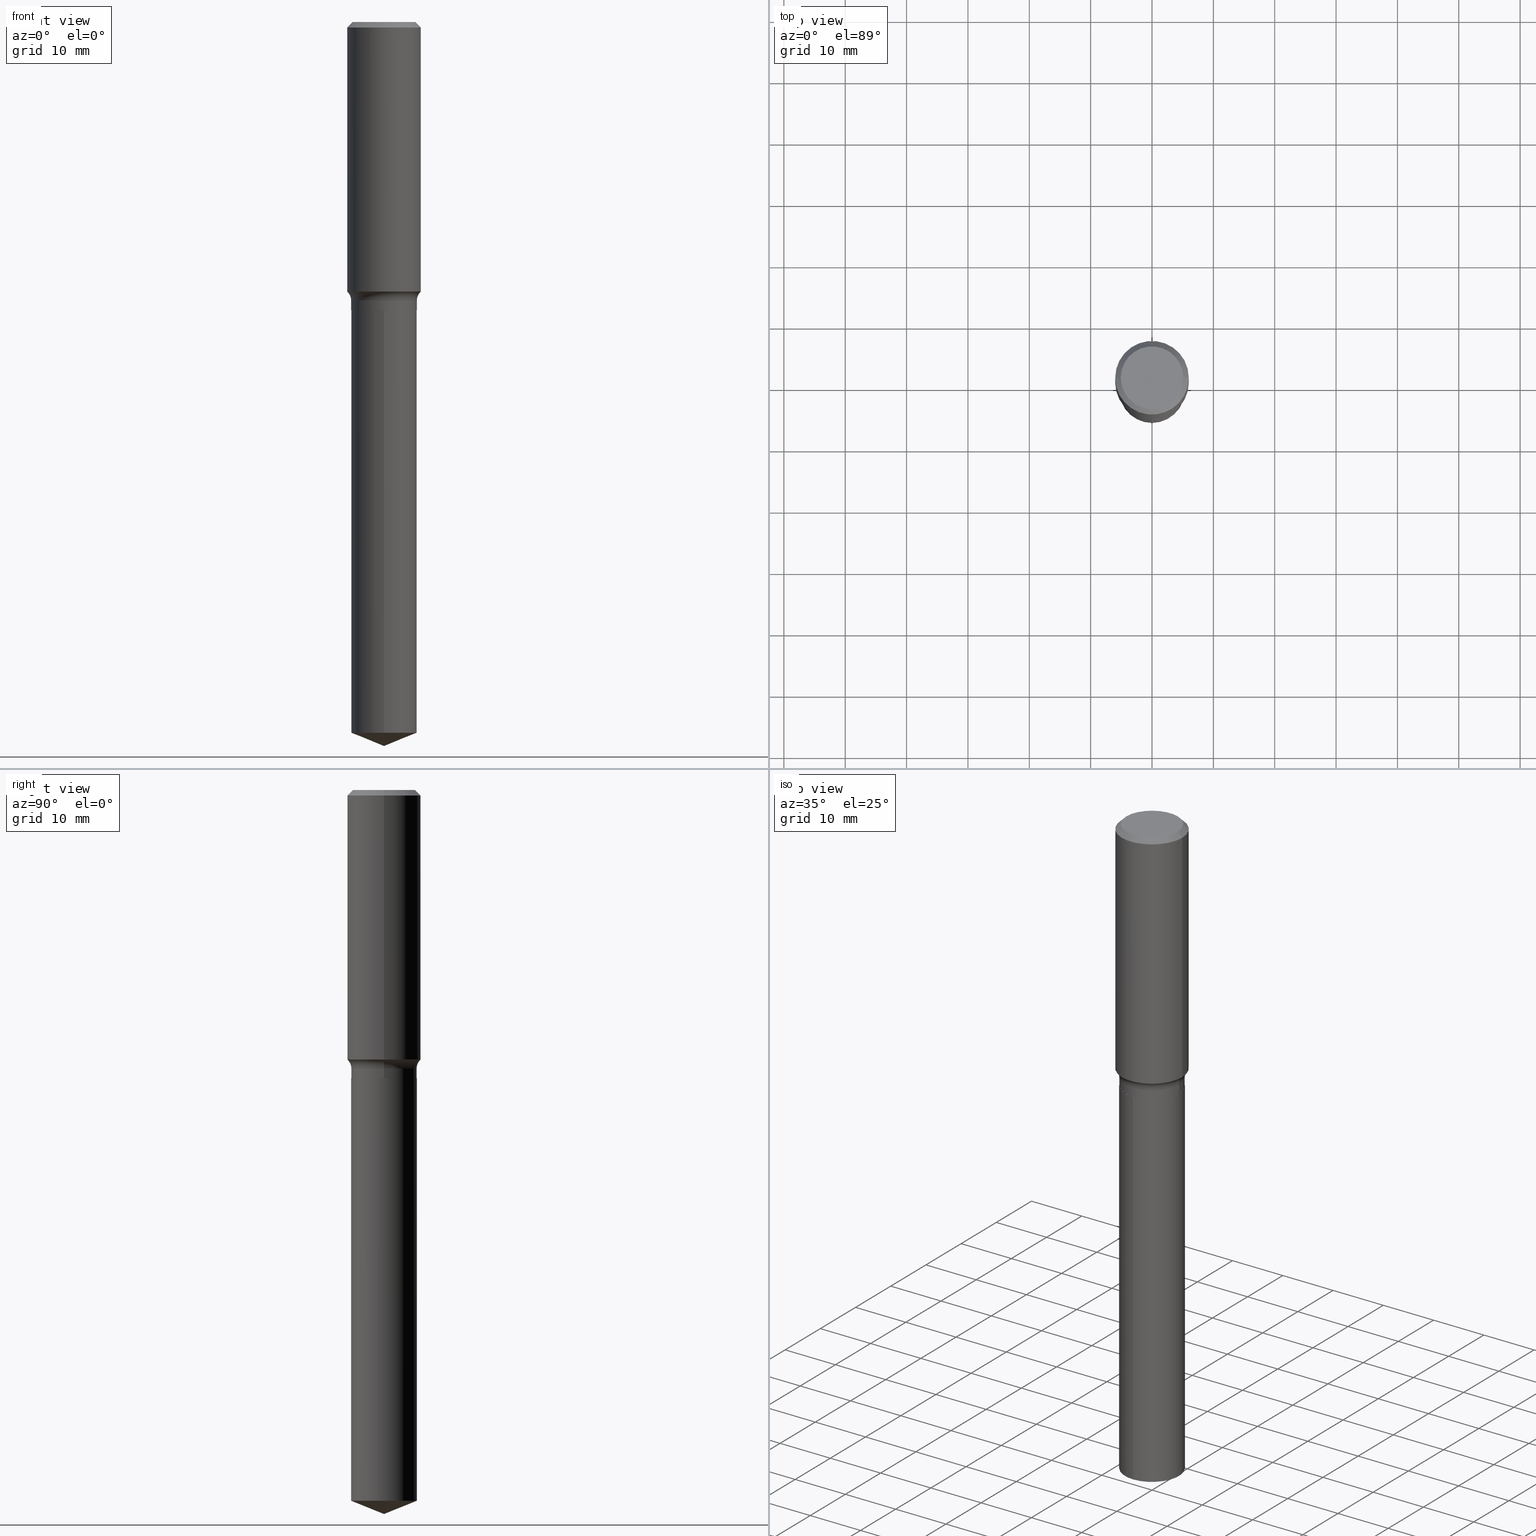
[diagram: canonical four-view strip — front | top / right | iso, engineering-drawing reading convention]
A machine part, canonical four-view strip (front | top / right | iso — engineering-drawing reading convention). The complete STEP part file that produces these views, byte-faithful:
ISO-10303-21;
HEADER;
FILE_DESCRIPTION (( 'STEP AP203' ),
    '1' );
FILE_NAME ('69300.STEP',
    '2024-04-19T17:44:13',
    ( '' ),
    ( '' ),
    'SwSTEP 2.0',
    'SolidWorks 2023',
    '' );
FILE_SCHEMA (( 'CONFIG_CONTROL_DESIGN' ));
ENDSEC;

DATA;
#1 = EDGE_CURVE ( 'NONE', #179, #182, #436, .T. ) ;
#2 = COORDINATED_UNIVERSAL_TIME_OFFSET ( 5, 0, .BEHIND. ) ;
#3 = ORIENTED_EDGE ( 'NONE', *, *, #29, .F. ) ;
#4 = AXIS2_PLACEMENT_3D ( 'NONE', #131, #52, #65 ) ;
#5 = AXIS2_PLACEMENT_3D ( 'NONE', #359, #38, #223 ) ;
#6 = DIRECTION ( 'NONE',  ( -2.445463332132347352E-29, 3.491489177998303329E-15, 1.000000000000000000 ) ) ;
#7 = PLANE ( 'NONE',  #279 ) ;
#8 = EDGE_CURVE ( 'NONE', #458, #177, #232, .T. ) ;
#9 = EDGE_LOOP ( 'NONE', ( #392, #197, #414, #148 ) ) ;
#10 = DIRECTION ( 'NONE',  ( -2.445468806185136597E-29, 3.491481338843145583E-15, 1.000000000000000000 ) ) ;
#11 = PERSON_AND_ORGANIZATION ( #233, #91 ) ;
#12 = CIRCLE ( 'NONE', #437, 0.2101500000000000035 ) ;
#13 = CC_DESIGN_APPROVAL ( #396, ( #204 ) ) ;
#14 = DIRECTION ( 'NONE',  ( -2.445468806185136597E-29, 3.491481338843145583E-15, 1.000000000000000000 ) ) ;
#15 = LINE ( 'NONE', #86, #317 ) ;
#16 = EDGE_CURVE ( 'NONE', #117, #69, #15, .T. ) ;
#17 = EDGE_LOOP ( 'NONE', ( #41, #222, #379, #73 ) ) ;
#18 = PERSON_AND_ORGANIZATION ( #233, #91 ) ;
#19 = PERSON_AND_ORGANIZATION_ROLE ( 'creator' ) ;
#20 = AXIS2_PLACEMENT_3D ( 'NONE', #381, #199, #423 ) ;
#21 = APPROVAL_DATE_TIME ( #357, #396 ) ;
#22 = CC_DESIGN_SECURITY_CLASSIFICATION ( #204, ( #318 ) ) ;
#23 = APPLICATION_CONTEXT ( 'configuration controlled 3d designs of mechanical parts and assemblies' ) ;
#24 = APPROVAL ( #321, 'UNSPECIFIED' ) ;
#25 = ADVANCED_FACE ( 'NONE', ( #282 ), #348, .T. ) ;
#26 = CARTESIAN_POINT ( 'NONE',  ( 1.496758272878762496E-15, 0.2106499999999841000, -4.560891875527826045 ) ) ;
#27 = CARTESIAN_POINT ( 'NONE',  ( 8.664295980313993487E-31, -1.237031838352134079E-16, -0.03543000000000021826 ) ) ;
#28 = DIRECTION ( 'NONE',  ( -6.982962677686266711E-15, -1.000000000000000000, 3.498761904101785748E-15 ) ) ;
#29 = EDGE_CURVE ( 'NONE', #452, #69, #465, .T. ) ;
#30 = CLOSED_SHELL ( 'NONE', ( #435, #95, #303, #129, #413, #192, #285, #25, #46, #207, #350, #338 ) ) ;
#31 = AXIS2_PLACEMENT_3D ( 'NONE', #483, #110, #260 ) ;
#32 = DIRECTION ( 'NONE',  ( -2.445468806185136597E-29, 3.491481338843145583E-15, 1.000000000000000000 ) ) ;
#33 = ORIENTED_EDGE ( 'NONE', *, *, #83, .T. ) ;
#34 = DIMENSIONAL_EXPONENTS ( 1.000000000000000000, 0.000000000000000000, 0.000000000000000000, 0.000000000000000000, 0.000000000000000000, 0.000000000000000000, 0.000000000000000000 ) ;
#35 = DESIGN_CONTEXT ( 'detailed design', #337, 'design' ) ;
#36 = DIRECTION ( 'NONE',  ( -2.445468806185136597E-29, 3.491481338843145583E-15, 1.000000000000000000 ) ) ;
#37 = DIRECTION ( 'NONE',  ( 1.000000000000000000, -6.982962677686268288E-15, 0.000000000000000000 ) ) ;
#38 = DIRECTION ( 'NONE',  ( -2.445468806185136597E-29, 3.491481338843145583E-15, 1.000000000000000000 ) ) ;
#39 = VECTOR ( 'NONE', #227, 39.37007874015748143 ) ;
#40 = CC_DESIGN_PERSON_AND_ORGANIZATION_ASSIGNMENT ( #11, #173, ( #318 ) ) ;
#41 = ORIENTED_EDGE ( 'NONE', *, *, #455, .T. ) ;
#42 = CARTESIAN_POINT ( 'NONE',  ( 0.2101500000000000035, -7.929154120512778443E-15, -1.850700000000000012 ) ) ;
#43 = APPROVAL_ROLE ( '' ) ;
#44 = EDGE_LOOP ( 'NONE', ( #369, #113, #429, #418 ) ) ;
#45 = ORIENTED_EDGE ( 'NONE', *, *, #438, .T. ) ;
#46 = ADVANCED_FACE ( 'NONE', ( #288 ), #203, .T. ) ;
#47 = DIRECTION ( 'NONE',  ( -1.000000000000000000, 6.982962677686265922E-15, -4.876176775795935793E-29 ) ) ;
#48 = MECHANICAL_CONTEXT ( 'NONE', #23, 'mechanical' ) ;
#49 = CONICAL_SURFACE ( 'NONE', #293, 97.44436430772958602, 1.186823891356149074 ) ;
#50 = ORIENTED_EDGE ( 'NONE', *, *, #8, .T. ) ;
#51 = DIRECTION ( 'NONE',  ( 1.000000000000000000, -6.982962677686266711E-15, 4.876176775795935793E-29 ) ) ;
#52 = DIRECTION ( 'NONE',  ( -2.445468806185136597E-29, 3.491481338843145583E-15, 1.000000000000000000 ) ) ;
#53 = COORDINATED_UNIVERSAL_TIME_OFFSET ( 5, 0, .BEHIND. ) ;
#54 = VECTOR ( 'NONE', #302, 39.37007874015748143 ) ;
#55 = FACE_OUTER_BOUND ( 'NONE', #191, .T. ) ;
#56 = PRODUCT_DEFINITION_SHAPE ( 'NONE', 'NONE',  #290 ) ;
#57 = DIRECTION ( 'NONE',  ( 0.7071067811866199593, -2.468850131083015945E-15, 0.7071067811864750752 ) ) ;
#58 = ORIENTED_EDGE ( 'NONE', *, *, #120, .F. ) ;
#59 = CARTESIAN_POINT ( 'NONE',  ( 8.664295980313993487E-31, -1.237031838352134079E-16, -0.03543000000000021826 ) ) ;
#60 = EDGE_CURVE ( 'NONE', #177, #124, #430, .T. ) ;
#61 = PERSON_AND_ORGANIZATION ( #233, #91 ) ;
#62 = VECTOR ( 'NONE', #394, 39.37007874015748143 ) ;
#63 = AXIS2_PLACEMENT_3D ( 'NONE', #147, #373, #156 ) ;
#64 = LINE ( 'NONE', #209, #389 ) ;
#65 = DIRECTION ( 'NONE',  ( 1.000000000000000000, -6.982962677686266711E-15, 0.000000000000000000 ) ) ;
#66 = CARTESIAN_POINT ( 'NONE',  ( 4.525829119606832626E-29, -6.461684513797009689E-15, -1.850700000000000012 ) ) ;
#67 = LINE ( 'NONE', #298, #114 ) ;
#68 = CARTESIAN_POINT ( 'NONE',  ( -0.2101500000000000035, -4.965829727423048317E-15, -1.850700000000000012 ) ) ;
#69 = VERTEX_POINT ( 'NONE', #250 ) ;
#70 = ORIENTED_EDGE ( 'NONE', *, *, #360, .T. ) ;
#71 = CLOSED_SHELL ( 'NONE', ( #205, #426, #462, #325, #201 ) ) ;
#72 = CARTESIAN_POINT ( 'NONE',  ( -8.491645117030201611E-28, 1.212387596451452399E-13, 34.72407874015748064 ) ) ;
#73 = ORIENTED_EDGE ( 'NONE', *, *, #240, .F. ) ;
#74 = EDGE_LOOP ( 'NONE', ( #312, #239 ) ) ;
#75 = CARTESIAN_POINT ( 'NONE',  ( 0.000000000000000000, 0.000000000000000000, 0.000000000000000000 ) ) ;
#76 = CARTESIAN_POINT ( 'NONE',  ( 4.371275491055932900E-29, -6.241022893182124538E-15, -1.787500000000000533 ) ) ;
#77 = ORIENTED_EDGE ( 'NONE', *, *, #29, .T. ) ;
#78 = CARTESIAN_POINT ( 'NONE',  ( -0.2106500000000000039, -4.853722560276206082E-15, -1.850200000000000067 ) ) ;
#79 = ORIENTED_EDGE ( 'NONE', *, *, #166, .T. ) ;
#80 = VECTOR ( 'NONE', #133, 39.37007874015748143 ) ;
#81 = ORIENTED_EDGE ( 'NONE', *, *, #16, .F. ) ;
#82 = CARTESIAN_POINT ( 'NONE',  ( 0.000000000000000000, 0.000000000000000000, 0.000000000000000000 ) ) ;
#83 = EDGE_CURVE ( 'NONE', #228, #416, #269, .T. ) ;
#84 = EDGE_LOOP ( 'NONE', ( #296, #266 ) ) ;
#85 = CYLINDRICAL_SURFACE ( 'NONE', #187, 0.2106500000000000039 ) ;
#86 = CARTESIAN_POINT ( 'NONE',  ( 0.2362000000000001043, -1.649375784469496920E-15, 1.151752954443000508E-29 ) ) ;
#87 = DIRECTION ( 'NONE',  ( 1.000000000000000000, 0.000000000000000000, 0.000000000000000000 ) ) ;
#88 = ORIENTED_EDGE ( 'NONE', *, *, #353, .T. ) ;
#89 = CARTESIAN_POINT ( 'NONE',  ( 4.230093396286823471E-29, -6.039452278983984562E-15, -1.729767881556277809 ) ) ;
#90 = TOROIDAL_SURFACE ( 'NONE', #119, 0.2886500000000000177, 0.07800000000000002764 ) ;
#91 = ORGANIZATION ( 'UNSPECIFIED', 'UNSPECIFIED', '' ) ;
#92 = ORIENTED_EDGE ( 'NONE', *, *, #236, .T. ) ;
#93 = COORDINATED_UNIVERSAL_TIME_OFFSET ( 5, 0, .BEHIND. ) ;
#94 = FACE_OUTER_BOUND ( 'NONE', #439, .T. ) ;
#95 = ADVANCED_FACE ( 'NONE', ( #397 ), #327, .T. ) ;
#96 = APPROVAL_ROLE ( '' ) ;
#97 = CARTESIAN_POINT ( 'NONE',  ( 4.230093396286823471E-29, -6.039452278983984562E-15, -1.729767881556277809 ) ) ;
#98 = VECTOR ( 'NONE', #57, 39.37007874015748143 ) ;
#99 = EDGE_CURVE ( 'NONE', #376, #458, #101, .T. ) ;
#100 = CARTESIAN_POINT ( 'NONE',  ( 1.136162264108688643E-28, -1.622145872098012038E-14, -4.645999999999999908 ) ) ;
#101 = LINE ( 'NONE', #253, #62 ) ;
#102 = APPROVAL_PERSON_ORGANIZATION ( #18, #24, #96 ) ;
#103 = CARTESIAN_POINT ( 'NONE',  ( 0.2361999999999999933, -1.744152810908849053E-15, -0.03543000000000021826 ) ) ;
#104 = DIRECTION ( 'NONE',  ( -1.000000000000000000, 7.105427357601001859E-15, 0.000000000000000000 ) ) ;
#105 = DIRECTION ( 'NONE',  ( -2.445468806185136877E-29, 3.491481338843145188E-15, 1.000000000000000000 ) ) ;
#106 = ORIENTED_EDGE ( 'NONE', *, *, #60, .T. ) ;
#107 = CARTESIAN_POINT ( 'NONE',  ( -0.2362000000000002153, -4.361150337118626591E-15, -1.729767881556277809 ) ) ;
#108 = MANIFOLD_SOLID_BREP ( 'Body-Move/Copy2[2]', #30 ) ;
#109 = ORIENTED_EDGE ( 'NONE', *, *, #99, .F. ) ;
#110 = DIRECTION ( 'NONE',  ( -2.445468806185136597E-29, 3.491481338843145583E-15, 1.000000000000000000 ) ) ;
#111 = MANIFOLD_SOLID_BREP ( 'Body-Move/Copy2[1]', #71 ) ;
#112 = LINE ( 'NONE', #261, #39 ) ;
#113 = ORIENTED_EDGE ( 'NONE', *, *, #346, .T. ) ;
#114 = VECTOR ( 'NONE', #105, 39.37007874015748143 ) ;
#115 = CC_DESIGN_DATE_AND_TIME_ASSIGNMENT ( #167, #352, ( #290 ) ) ;
#116 = DIRECTION ( 'NONE',  ( 1.000000000000000000, -6.982962677686265922E-15, 0.000000000000000000 ) ) ;
#117 = VERTEX_POINT ( 'NONE', #141 ) ;
#118 = DIRECTION ( 'NONE',  ( -2.445463332132347352E-29, 3.491489177998303329E-15, 1.000000000000000000 ) ) ;
#119 = AXIS2_PLACEMENT_3D ( 'NONE', #468, #14, #202 ) ;
#120 = EDGE_CURVE ( 'NONE', #476, #264, #152, .T. ) ;
#121 = EDGE_LOOP ( 'NONE', ( #109, #441, #450, #286 ) ) ;
#122 = DIRECTION ( 'NONE',  ( 1.000000000000000000, -6.982962677686268288E-15, 0.000000000000000000 ) ) ;
#123 = CARTESIAN_POINT ( 'NONE',  ( 4.524606385203739825E-29, -6.459938773127588186E-15, -1.850200000000000067 ) ) ;
#124 = VERTEX_POINT ( 'NONE', #255 ) ;
#125 = DIRECTION ( 'NONE',  ( 1.000000000000000000, -6.982962677686265922E-15, 0.000000000000000000 ) ) ;
#126 = PERSON_AND_ORGANIZATION_ROLE ( 'classification_officer' ) ;
#127 = VECTOR ( 'NONE', #478, 39.37007874015748143 ) ;
#128 = CIRCLE ( 'NONE', #349, 0.2106500000000000039 ) ;
#129 = ADVANCED_FACE ( 'NONE', ( #198 ), #90, .F. ) ;
#130 = CARTESIAN_POINT ( 'NONE',  ( 1.496758272878762890E-15, 0.2106499999999935646, -1.850700000000000900 ) ) ;
#131 = CARTESIAN_POINT ( 'NONE',  ( 8.664295980313993487E-31, -1.237031838352134079E-16, -0.03543000000000021826 ) ) ;
#132 = CARTESIAN_POINT ( 'NONE',  ( 0.000000000000000000, 0.000000000000000000, 0.000000000000000000 ) ) ;
#133 = DIRECTION ( 'NONE',  ( 6.588037525764803124E-15, 0.9271838545667905329, 0.3746065934159041877 ) ) ;
#134 = ORIENTED_EDGE ( 'NONE', *, *, #268, .F. ) ;
#135 = CC_DESIGN_PERSON_AND_ORGANIZATION_ASSIGNMENT ( #283, #19, ( #318 ) ) ;
#136 = AXIS2_PLACEMENT_3D ( 'NONE', #27, #210, #146 ) ;
#137 =( GEOMETRIC_REPRESENTATION_CONTEXT ( 3 ) GLOBAL_UNCERTAINTY_ASSIGNED_CONTEXT ( ( #443 ) ) GLOBAL_UNIT_ASSIGNED_CONTEXT ( ( #412, #310, #339 ) ) REPRESENTATION_CONTEXT ( 'NONE', 'WORKASPACE' ) );
#138 = CALENDAR_DATE ( 2024, 19, 4 ) ;
#139 = CARTESIAN_POINT ( 'NONE',  ( 0.2106500000000000039, -1.470961088054612155E-15, 1.027166637821413946E-29 ) ) ;
#140 = DIRECTION ( 'NONE',  ( -2.445463332132347352E-29, 3.491489177998303329E-15, 1.000000000000000000 ) ) ;
#141 = CARTESIAN_POINT ( 'NONE',  ( 0.2362000000000002153, -7.688828063453482665E-15, -1.729767881556277809 ) ) ;
#142 = AXIS2_PLACEMENT_3D ( 'NONE', #306, #6, #460 ) ;
#143 = AXIS2_PLACEMENT_3D ( 'NONE', #66, #140, #291 ) ;
#144 = DIRECTION ( 'NONE',  ( 1.000000000000000000, -6.982962677686266711E-15, 4.876140833081945105E-29 ) ) ;
#145 = DIRECTION ( 'NONE',  ( -2.445463332132347352E-29, 3.491489177998303329E-15, 1.000000000000000000 ) ) ;
#146 = DIRECTION ( 'NONE',  ( -1.000000000000000000, 6.982962677686266711E-15, 0.000000000000000000 ) ) ;
#147 = CARTESIAN_POINT ( 'NONE',  ( -8.491645117030201611E-28, 1.212387596451452399E-13, 34.72407874015748064 ) ) ;
#148 = ORIENTED_EDGE ( 'NONE', *, *, #370, .F. ) ;
#149 = CARTESIAN_POINT ( 'NONE',  ( 4.525829119606832626E-29, -6.461684513797009689E-15, -1.850700000000000012 ) ) ;
#150 = EDGE_CURVE ( 'NONE', #264, #124, #387, .T. ) ;
#151 = VERTEX_POINT ( 'NONE', #276 ) ;
#152 = CIRCLE ( 'NONE', #196, 0.07800000000000002764 ) ;
#153 = DIRECTION ( 'NONE',  ( 1.000000000000000000, -6.982962677686266711E-15, 4.876140833081945105E-29 ) ) ;
#154 = CARTESIAN_POINT ( 'NONE',  ( -0.2361999999999999933, 1.525672600634282748E-15, -0.03543000000000021826 ) ) ;
#155 = FACE_OUTER_BOUND ( 'NONE', #162, .T. ) ;
#156 = DIRECTION ( 'NONE',  ( -6.982962677686266711E-15, -1.000000000000000000, 3.498761904101785748E-15 ) ) ;
#157 = ORIENTED_EDGE ( 'NONE', *, *, #214, .F. ) ;
#158 = FACE_OUTER_BOUND ( 'NONE', #121, .T. ) ;
#159 = CALENDAR_DATE ( 2024, 19, 4 ) ;
#160 = ORIENTED_EDGE ( 'NONE', *, *, #236, .F. ) ;
#161 = CIRCLE ( 'NONE', #5, 0.2101500000000000035 ) ;
#162 = EDGE_LOOP ( 'NONE', ( #157, #407, #88, #134 ) ) ;
#163 = DIRECTION ( 'NONE',  ( 0.000000000000000000, 0.000000000000000000, 1.000000000000000000 ) ) ;
#164 = EDGE_LOOP ( 'NONE', ( #224, #33 ) ) ;
#165 = PLANE ( 'NONE',  #356 ) ;
#166 = EDGE_CURVE ( 'NONE', #476, #117, #490, .T. ) ;
#167 = DATE_AND_TIME ( #208, #466 ) ;
#168 = AXIS2_PLACEMENT_3D ( 'NONE', #256, #371, #37 ) ;
#169 = CYLINDRICAL_SURFACE ( 'NONE', #417, 0.2106500000000000039 ) ;
#170 = PERSON_AND_ORGANIZATION_ROLE ( 'creator' ) ;
#171 = EDGE_CURVE ( 'NONE', #476, #452, #247, .T. ) ;
#172 = COORDINATED_UNIVERSAL_TIME_OFFSET ( 5, 0, .BEHIND. ) ;
#173 = PERSON_AND_ORGANIZATION_ROLE ( 'design_supplier' ) ;
#174 = LINE ( 'NONE', #100, #333 ) ;
#175 = CARTESIAN_POINT ( 'NONE',  ( 0.2007700000000000040, -1.560767496960719672E-15, 4.096137381458473721E-18 ) ) ;
#176 = EDGE_CURVE ( 'NONE', #117, #476, #218, .T. ) ;
#177 = VERTEX_POINT ( 'NONE', #385 ) ;
#178 = CARTESIAN_POINT ( 'NONE',  ( 1.136164308041671340E-28, -1.622142970513121582E-14, -4.645999999999999908 ) ) ;
#179 = VERTEX_POINT ( 'NONE', #461 ) ;
#180 = TOROIDAL_SURFACE ( 'NONE', #479, 0.2886500000000000177, 0.07800000000000002764 ) ;
#181 = CARTESIAN_POINT ( 'NONE',  ( -0.2007700000000000040, 1.463821008716677338E-15, 4.096137381438094301E-18 ) ) ;
#182 = VERTEX_POINT ( 'NONE', #130 ) ;
#183 = ORIENTED_EDGE ( 'NONE', *, *, #294, .F. ) ;
#184 = CC_DESIGN_PERSON_AND_ORGANIZATION_ASSIGNMENT ( #281, #170, ( #290 ) ) ;
#185 = CARTESIAN_POINT ( 'NONE',  ( 1.115350397425312499E-28, -1.592429011750133735E-14, -4.560891875527825157 ) ) ;
#186 = CARTESIAN_POINT ( 'NONE',  ( 4.525829119606832626E-29, -6.461684513797009689E-15, -1.850700000000000012 ) ) ;
#187 = AXIS2_PLACEMENT_3D ( 'NONE', #206, #345, #245 ) ;
#188 = AXIS2_PLACEMENT_3D ( 'NONE', #185, #145, #267 ) ;
#189 = DIRECTION ( 'NONE',  ( 1.000000000000000000, -6.982962677686265922E-15, 0.000000000000000000 ) ) ;
#190 = FACE_OUTER_BOUND ( 'NONE', #237, .T. ) ;
#191 = EDGE_LOOP ( 'NONE', ( #45, #368, #445, #471 ) ) ;
#192 = ADVANCED_FACE ( 'NONE', ( #94 ), #169, .T. ) ;
#193 = DIRECTION ( 'NONE',  ( 1.000000000000000000, -6.982962677686266711E-15, 4.876176775795935793E-29 ) ) ;
#194 = ORIENTED_EDGE ( 'NONE', *, *, #438, .F. ) ;
#195 = DIRECTION ( 'NONE',  ( -2.445468806185136877E-29, 3.491481338843145188E-15, 1.000000000000000000 ) ) ;
#196 = AXIS2_PLACEMENT_3D ( 'NONE', #292, #434, #104 ) ;
#197 = ORIENTED_EDGE ( 'NONE', *, *, #274, .T. ) ;
#198 = FACE_OUTER_BOUND ( 'NONE', #342, .T. ) ;
#199 = DIRECTION ( 'NONE',  ( -2.445468806185136597E-29, 3.491481338843145583E-15, 1.000000000000000000 ) ) ;
#200 = CARTESIAN_POINT ( 'NONE',  ( 0.000000000000000000, 0.000000000000000000, 0.000000000000000000 ) ) ;
#201 = ADVANCED_FACE ( 'NONE', ( #284 ), #165, .F. ) ;
#202 = DIRECTION ( 'NONE',  ( 1.000000000000000000, -6.982962677686267499E-15, 4.883557194083114022E-29 ) ) ;
#203 = CONICAL_SURFACE ( 'NONE', #136, 0.2361999999999999933, 0.7853981633974452814 ) ;
#204 = SECURITY_CLASSIFICATION ( '', '', #473 ) ;
#205 = ADVANCED_FACE ( 'NONE', ( #55 ), #85, .T. ) ;
#206 = CARTESIAN_POINT ( 'NONE',  ( 4.525829119606832626E-29, -6.461684513797009689E-15, -1.850700000000000012 ) ) ;
#207 = ADVANCED_FACE ( 'NONE', ( #351 ), #7, .F. ) ;
#208 = CALENDAR_DATE ( 2024, 19, 4 ) ;
#209 = CARTESIAN_POINT ( 'NONE',  ( 1.496758272878696232E-15, 0.2106499999999935646, -1.850700000000000900 ) ) ;
#210 = DIRECTION ( 'NONE',  ( 2.445468806185136597E-29, -3.491481338843145583E-15, -1.000000000000000000 ) ) ;
#211 = DATE_AND_TIME ( #159, #419 ) ;
#212 = CC_DESIGN_APPROVAL ( #403, ( #290 ) ) ;
#213 = LINE ( 'NONE', #178, #80 ) ;
#214 = EDGE_CURVE ( 'NONE', #231, #182, #64, .T. ) ;
#215 = ORIENTED_EDGE ( 'NONE', *, *, #120, .T. ) ;
#216 = DIRECTION ( 'NONE',  ( -6.982962677686265922E-15, -1.000000000000000000, 2.593731776562319814E-15 ) ) ;
#217 = FACE_OUTER_BOUND ( 'NONE', #44, .T. ) ;
#218 = CIRCLE ( 'NONE', #262, 0.2362000000000002153 ) ;
#219 = ORIENTED_EDGE ( 'NONE', *, *, #16, .T. ) ;
#220 = EDGE_CURVE ( 'NONE', #151, #340, #174, .T. ) ;
#221 = CIRCLE ( 'NONE', #395, 0.2106500000000000039 ) ;
#222 = ORIENTED_EDGE ( 'NONE', *, *, #99, .T. ) ;
#223 = DIRECTION ( 'NONE',  ( 1.000000000000000000, -6.982962677686268288E-15, 0.000000000000000000 ) ) ;
#224 = ORIENTED_EDGE ( 'NONE', *, *, #322, .T. ) ;
#225 = ORIENTED_EDGE ( 'NONE', *, *, #166, .F. ) ;
#226 = DIRECTION ( 'NONE',  ( -2.445468806185136597E-29, 3.491481338843145583E-15, 1.000000000000000000 ) ) ;
#227 = DIRECTION ( 'NONE',  ( -2.445463332132347072E-29, 3.491489177998303329E-15, 1.000000000000000000 ) ) ;
#228 = VERTEX_POINT ( 'NONE', #175 ) ;
#229 = CARTESIAN_POINT ( 'NONE',  ( 4.371275491055932900E-29, -6.241022893182124538E-15, -1.787500000000000533 ) ) ;
#230 = DIRECTION ( 'NONE',  ( 1.000000000000000000, -6.982962677686268288E-15, 0.000000000000000000 ) ) ;
#231 = VERTEX_POINT ( 'NONE', #26 ) ;
#232 = CIRCLE ( 'NONE', #307, 0.2106500000000000039 ) ;
#233 = PERSON ( 'UNSPECIFIED', 'UNSPECIFIED', 'UNSPECIFIED', ('UNSPECIFIED'), ('UNSPECIFIED'), ('UNSPECIFIED') ) ;
#234 = CONICAL_SURFACE ( 'NONE', #63, 97.44436430772958602, 1.186823891356149074 ) ;
#235 = DIRECTION ( 'NONE',  ( -6.982962677686265922E-15, -1.000000000000000000, 3.890597664843479129E-15 ) ) ;
#236 = EDGE_CURVE ( 'NONE', #151, #231, #213, .T. ) ;
#237 = EDGE_LOOP ( 'NONE', ( #160, #485, #446 ) ) ;
#238 = PERSON_AND_ORGANIZATION ( #233, #91 ) ;
#239 = ORIENTED_EDGE ( 'NONE', *, *, #268, .T. ) ;
#240 = EDGE_CURVE ( 'NONE', #330, #177, #361, .T. ) ;
#241 = DIRECTION ( 'NONE',  ( -2.445468806185136877E-29, 3.491481338843145188E-15, 1.000000000000000000 ) ) ;
#242 = VECTOR ( 'NONE', #195, 39.37007874015748143 ) ;
#243 = AXIS2_PLACEMENT_3D ( 'NONE', #200, #163, #87 ) ;
#244 = ORIENTED_EDGE ( 'NONE', *, *, #176, .T. ) ;
#245 = DIRECTION ( 'NONE',  ( -6.982962677686265922E-15, -1.000000000000000000, 3.890597664843479129E-15 ) ) ;
#246 = APPROVAL_STATUS ( 'not_yet_approved' ) ;
#247 = LINE ( 'NONE', #382, #242 ) ;
#248 = CC_DESIGN_PERSON_AND_ORGANIZATION_ASSIGNMENT ( #238, #378, ( #390 ) ) ;
#249 = APPROVAL_PERSON_ORGANIZATION ( #61, #396, #464 ) ;
#250 = CARTESIAN_POINT ( 'NONE',  ( 0.2361999999999999933, -1.773078968304709514E-15, -0.03543000000000021826 ) ) ;
#251 = CALENDAR_DATE ( 2024, 19, 4 ) ;
#252 = CARTESIAN_POINT ( 'NONE',  ( -1.001697619218023151E-46, 1.430158722866391908E-32, 4.096137381448114529E-18 ) ) ;
#253 = CARTESIAN_POINT ( 'NONE',  ( -0.2101500000000000035, -4.968478954597159518E-15, -1.850700000000000012 ) ) ;
#254 = CIRCLE ( 'NONE', #280, 0.2007700000000000040 ) ;
#255 = CARTESIAN_POINT ( 'NONE',  ( 0.2106500000000000039, -7.711983981236735510E-15, -1.787500000000000533 ) ) ;
#256 = CARTESIAN_POINT ( 'NONE',  ( 0.2886500000000000177, -8.256655070096265134E-15, -1.787500000000000533 ) ) ;
#257 = ORIENTED_EDGE ( 'NONE', *, *, #360, .F. ) ;
#258 = CC_DESIGN_DATE_AND_TIME_ASSIGNMENT ( #469, #424, ( #204 ) ) ;
#259 = ORIENTED_EDGE ( 'NONE', *, *, #171, .T. ) ;
#260 = DIRECTION ( 'NONE',  ( 1.000000000000000000, -6.982962677686266711E-15, 0.000000000000000000 ) ) ;
#261 = CARTESIAN_POINT ( 'NONE',  ( -1.470961088054566598E-15, -0.2106500000000064710, -1.850699999999999124 ) ) ;
#262 = AXIS2_PLACEMENT_3D ( 'NONE', #97, #470, #316 ) ;
#263 = CIRCLE ( 'NONE', #143, 0.2106500000000000039 ) ;
#264 = VERTEX_POINT ( 'NONE', #474 ) ;
#265 = CARTESIAN_POINT ( 'NONE',  ( 4.525829119606832626E-29, -6.461684513797009689E-15, -1.850700000000000012 ) ) ;
#266 = ORIENTED_EDGE ( 'NONE', *, *, #420, .F. ) ;
#267 = DIRECTION ( 'NONE',  ( -6.982962677686265922E-15, -1.000000000000000000, 2.593731776562319814E-15 ) ) ;
#268 = EDGE_CURVE ( 'NONE', #182, #179, #263, .T. ) ;
#269 = CIRCLE ( 'NONE', #363, 0.2007700000000000040 ) ;
#270 = CIRCLE ( 'NONE', #168, 0.07800000000000002764 ) ;
#271 = LOCAL_TIME ( 13, 44, 13.00000000000000000, #289 ) ;
#272 = ORIENTED_EDGE ( 'NONE', *, *, #322, .F. ) ;
#273 = CARTESIAN_POINT ( 'NONE',  ( -5.008488096090115757E-47, 7.150793614331959538E-33, 2.048068690724057264E-18 ) ) ;
#274 = EDGE_CURVE ( 'NONE', #228, #69, #433, .T. ) ;
#275 = DIRECTION ( 'NONE',  ( -2.445468806185136597E-29, 3.491481338843145583E-15, 1.000000000000000000 ) ) ;
#276 = CARTESIAN_POINT ( 'NONE',  ( 1.136162264108688643E-28, -1.622145872098012038E-14, -4.645999999999999908 ) ) ;
#277 =( LENGTH_UNIT ( ) NAMED_UNIT ( * ) SI_UNIT ( $, .METRE. ) );
#278 = ORIENTED_EDGE ( 'NONE', *, *, #171, .F. ) ;
#279 = AXIS2_PLACEMENT_3D ( 'NONE', #273, #415, #47 ) ;
#280 = AXIS2_PLACEMENT_3D ( 'NONE', #334, #411, #153 ) ;
#281 = PERSON_AND_ORGANIZATION ( #233, #91 ) ;
#282 = FACE_OUTER_BOUND ( 'NONE', #375, .T. ) ;
#283 = PERSON_AND_ORGANIZATION ( #233, #91 ) ;
#284 = FACE_OUTER_BOUND ( 'NONE', #74, .T. ) ;
#285 = ADVANCED_FACE ( 'NONE', ( #477 ), #180, .F. ) ;
#286 = ORIENTED_EDGE ( 'NONE', *, *, #8, .F. ) ;
#287 = AXIS2_PLACEMENT_3D ( 'NONE', #59, #324, #432 ) ;
#288 = FACE_OUTER_BOUND ( 'NONE', #482, .T. ) ;
#289 = COORDINATED_UNIVERSAL_TIME_OFFSET ( 5, 0, .BEHIND. ) ;
#290 = PRODUCT_DEFINITION ( 'UNKNOWN', '', #318, #35 ) ;
#291 = DIRECTION ( 'NONE',  ( -6.982962677686265922E-15, -1.000000000000000000, 3.890597664843479129E-15 ) ) ;
#292 = CARTESIAN_POINT ( 'NONE',  ( -0.2886500000000000177, -4.190041286410594832E-15, -1.787500000000000533 ) ) ;
#293 = AXIS2_PLACEMENT_3D ( 'NONE', #72, #329, #28 ) ;
#294 = EDGE_CURVE ( 'NONE', #69, #452, #364, .T. ) ;
#295 = CARTESIAN_POINT ( 'NONE',  ( 4.524606385203739825E-29, -6.459938773127588186E-15, -1.850200000000000067 ) ) ;
#296 = ORIENTED_EDGE ( 'NONE', *, *, #455, .F. ) ;
#297 = DIRECTION ( 'NONE',  ( -2.445468806185136597E-29, 3.491481338843145583E-15, 1.000000000000000000 ) ) ;
#298 = CARTESIAN_POINT ( 'NONE',  ( -0.2106500000000000039, 1.496758272878651069E-15, -1.036173676762196056E-29 ) ) ;
#299 = DIRECTION ( 'NONE',  ( -2.445468806185136597E-29, 3.491481338843145583E-15, 1.000000000000000000 ) ) ;
#300 = APPROVAL_PERSON_ORGANIZATION ( #341, #403, #43 ) ;
#301 = ORIENTED_EDGE ( 'NONE', *, *, #311, .T. ) ;
#302 = DIRECTION ( 'NONE',  ( -0.7071067811865453523, 2.468850131082234184E-15, -0.7071067811865496822 ) ) ;
#303 = ADVANCED_FACE ( 'NONE', ( #399 ), #366, .T. ) ;
#304 = CARTESIAN_POINT ( 'NONE',  ( 4.525829119606832626E-29, -6.461684513797009689E-15, -1.850700000000000012 ) ) ;
#305 = PLANE ( 'NONE',  #328 ) ;
#306 = CARTESIAN_POINT ( 'NONE',  ( 4.525829119606832626E-29, -6.461684513797009689E-15, -1.850700000000000012 ) ) ;
#307 = AXIS2_PLACEMENT_3D ( 'NONE', #123, #275, #125 ) ;
#308 = AXIS2_PLACEMENT_3D ( 'NONE', #186, #299, #451 ) ;
#309 = DIRECTION ( 'NONE',  ( -2.445468806185136597E-29, 3.491481338843145583E-15, 1.000000000000000000 ) ) ;
#310 =( NAMED_UNIT ( * ) PLANE_ANGLE_UNIT ( ) SI_UNIT ( $, .RADIAN. ) );
#311 = EDGE_CURVE ( 'NONE', #124, #264, #410, .T. ) ;
#312 = ORIENTED_EDGE ( 'NONE', *, *, #1, .T. ) ;
#313 = DIRECTION ( 'NONE',  ( 1.000000000000000000, -6.982962677686266711E-15, 0.000000000000000000 ) ) ;
#314 = APPLICATION_PROTOCOL_DEFINITION ( 'international standard', 'config_control_design', 1994, #337 ) ;
#315 = ORIENTED_EDGE ( 'NONE', *, *, #274, .F. ) ;
#316 = DIRECTION ( 'NONE',  ( 1.000000000000000000, -6.982962677686266711E-15, 0.000000000000000000 ) ) ;
#317 = VECTOR ( 'NONE', #241, 39.37007874015748143 ) ;
#318 = PRODUCT_DEFINITION_FORMATION_WITH_SPECIFIED_SOURCE ( 'ANY', '', #390, .NOT_KNOWN. ) ;
#319 = PRODUCT_RELATED_PRODUCT_CATEGORY ( 'detail', '', ( #390 ) ) ;
#320 = APPROVAL_DATE_TIME ( #211, #403 ) ;
#321 = APPROVAL_STATUS ( 'not_yet_approved' ) ;
#322 = EDGE_CURVE ( 'NONE', #416, #228, #254, .T. ) ;
#323 = AXIS2_PLACEMENT_3D ( 'NONE', #229, #36, #189 ) ;
#324 = DIRECTION ( 'NONE',  ( 2.445468806185136597E-29, -3.491481338843145583E-15, -1.000000000000000000 ) ) ;
#325 = ADVANCED_FACE ( 'NONE', ( #155 ), #408, .T. ) ;
#326 = DIRECTION ( 'NONE',  ( 0.7071067811865453523, -7.319954787623248157E-15, -0.7071067811865496822 ) ) ;
#327 = CONICAL_SURFACE ( 'NONE', #287, 0.2361999999999999933, 0.7853981633974452814 ) ;
#328 = AXIS2_PLACEMENT_3D ( 'NONE', #265, #405, #362 ) ;
#329 = DIRECTION ( 'NONE',  ( -2.445463332132347352E-29, 3.491489177998303329E-15, 1.000000000000000000 ) ) ;
#330 = VERTEX_POINT ( 'NONE', #42 ) ;
#331 = LINE ( 'NONE', #154, #54 ) ;
#332 = CC_DESIGN_PERSON_AND_ORGANIZATION_ASSIGNMENT ( #384, #126, ( #204 ) ) ;
#333 = VECTOR ( 'NONE', #391, 39.37007874015748854 ) ;
#334 = CARTESIAN_POINT ( 'NONE',  ( -1.001697619218023151E-46, 1.430158722866391908E-32, 4.096137381448114529E-18 ) ) ;
#335 = CARTESIAN_POINT ( 'NONE',  ( -0.2361999999999999933, -1.403275789544241100E-15, -0.03543000000000021826 ) ) ;
#336 = ORIENTED_EDGE ( 'NONE', *, *, #176, .F. ) ;
#337 = APPLICATION_CONTEXT ( 'configuration controlled 3d designs of mechanical parts and assemblies' ) ;
#338 = ADVANCED_FACE ( 'NONE', ( #158 ), #449, .T. ) ;
#339 =( NAMED_UNIT ( * ) SI_UNIT ( $, .STERADIAN. ) SOLID_ANGLE_UNIT ( ) );
#340 = VERTEX_POINT ( 'NONE', #400 ) ;
#341 = PERSON_AND_ORGANIZATION ( #233, #91 ) ;
#342 = EDGE_LOOP ( 'NONE', ( #225, #215, #486, #257 ) ) ;
#343 = DIRECTION ( 'NONE',  ( -2.445468806185136597E-29, 3.491481338843145583E-15, 1.000000000000000000 ) ) ;
#344 = LENGTH_MEASURE_WITH_UNIT ( LENGTH_MEASURE( 0.02539999999999999897 ), #277 );
#345 = DIRECTION ( 'NONE',  ( -2.445463332132347352E-29, 3.491489177998303329E-15, 1.000000000000000000 ) ) ;
#346 = EDGE_CURVE ( 'NONE', #458, #264, #67, .T. ) ;
#347 = DIRECTION ( 'NONE',  ( -2.445468806185136597E-29, 3.491481338843145583E-15, 1.000000000000000000 ) ) ;
#348 = CYLINDRICAL_SURFACE ( 'NONE', #20, 0.2362000000000001043 ) ;
#349 = AXIS2_PLACEMENT_3D ( 'NONE', #406, #489, #216 ) ;
#350 = ADVANCED_FACE ( 'NONE', ( #492 ), #305, .F. ) ;
#351 = FACE_OUTER_BOUND ( 'NONE', #164, .T. ) ;
#352 = DATE_TIME_ROLE ( 'creation_date' ) ;
#353 = EDGE_CURVE ( 'NONE', #340, #179, #112, .T. ) ;
#354 = APPROVAL_DATE_TIME ( #393, #24 ) ;
#355 = DIRECTION ( 'NONE',  ( -2.445463332132347072E-29, 3.491489177998303329E-15, 1.000000000000000000 ) ) ;
#356 = AXIS2_PLACEMENT_3D ( 'NONE', #425, #422, #388 ) ;
#357 = DATE_AND_TIME ( #431, #271 ) ;
#358 = CARTESIAN_POINT ( 'NONE',  ( 0.2101500000000000035, -7.929154120512778443E-15, -1.850700000000000012 ) ) ;
#359 = CARTESIAN_POINT ( 'NONE',  ( 4.525829119606832626E-29, -6.461684513797009689E-15, -1.850700000000000012 ) ) ;
#360 = EDGE_CURVE ( 'NONE', #117, #124, #270, .T. ) ;
#361 = LINE ( 'NONE', #358, #98 ) ;
#362 = DIRECTION ( 'NONE',  ( 1.000000000000000000, -6.982962677686265922E-15, 4.876176775795935793E-29 ) ) ;
#363 = AXIS2_PLACEMENT_3D ( 'NONE', #252, #475, #144 ) ;
#364 = CIRCLE ( 'NONE', #31, 0.2361999999999999933 ) ;
#365 = ORIENTED_EDGE ( 'NONE', *, *, #220, .F. ) ;
#366 = CYLINDRICAL_SURFACE ( 'NONE', #491, 0.2362000000000001043 ) ;
#367 = EDGE_LOOP ( 'NONE', ( #365, #92, #194 ) ) ;
#368 = ORIENTED_EDGE ( 'NONE', *, *, #214, .T. ) ;
#369 = ORIENTED_EDGE ( 'NONE', *, *, #444, .T. ) ;
#370 = EDGE_CURVE ( 'NONE', #416, #452, #331, .T. ) ;
#371 = DIRECTION ( 'NONE',  ( -6.982962677686266711E-15, -1.000000000000000000, 3.491481338843145583E-15 ) ) ;
#372 = ORIENTED_EDGE ( 'NONE', *, *, #150, .F. ) ;
#373 = DIRECTION ( 'NONE',  ( -2.445463332132347352E-29, 3.491489177998303329E-15, 1.000000000000000000 ) ) ;
#374 = LOCAL_TIME ( 13, 44, 13.00000000000000000, #53 ) ;
#375 = EDGE_LOOP ( 'NONE', ( #278, #79, #219, #3 ) ) ;
#376 = VERTEX_POINT ( 'NONE', #68 ) ;
#377 = DIRECTION ( 'NONE',  ( 1.000000000000000000, -6.982962677686265922E-15, 0.000000000000000000 ) ) ;
#378 = PERSON_AND_ORGANIZATION_ROLE ( 'design_owner' ) ;
#379 = ORIENTED_EDGE ( 'NONE', *, *, #444, .F. ) ;
#380 = AXIS2_PLACEMENT_3D ( 'NONE', #75, #32, #487 ) ;
#381 = CARTESIAN_POINT ( 'NONE',  ( 0.000000000000000000, 0.000000000000000000, 0.000000000000000000 ) ) ;
#382 = CARTESIAN_POINT ( 'NONE',  ( -0.2362000000000001043, 1.678301941865357380E-15, -1.161852468318209317E-29 ) ) ;
#383 = EDGE_CURVE ( 'NONE', #231, #340, #402, .T. ) ;
#384 = PERSON_AND_ORGANIZATION ( #233, #91 ) ;
#385 = CARTESIAN_POINT ( 'NONE',  ( 0.2106500000000000039, -7.930899861182200735E-15, -1.850200000000000067 ) ) ;
#386 = SHAPE_DEFINITION_REPRESENTATION ( #56, #459 ) ;
#387 = CIRCLE ( 'NONE', #427, 0.2106500000000000039 ) ;
#388 = DIRECTION ( 'NONE',  ( 6.982962677686265922E-15, 1.000000000000000000, -3.491489177998303329E-15 ) ) ;
#389 = VECTOR ( 'NONE', #355, 39.37007874015748143 ) ;
#390 = PRODUCT ( '69300', '69300', '', ( #48 ) ) ;
#391 = DIRECTION ( 'NONE',  ( -6.474490251793188884E-15, -0.9271838545667878684, 0.3746065934159105715 ) ) ;
#392 = ORIENTED_EDGE ( 'NONE', *, *, #83, .F. ) ;
#393 = DATE_AND_TIME ( #251, #374 ) ;
#394 = DIRECTION ( 'NONE',  ( -0.7071067811866199593, 7.493145998870616062E-15, 0.7071067811864750752 ) ) ;
#395 = AXIS2_PLACEMENT_3D ( 'NONE', #295, #447, #116 ) ;
#396 = APPROVAL ( #246, 'UNSPECIFIED' ) ;
#397 = FACE_OUTER_BOUND ( 'NONE', #9, .T. ) ;
#398 = ORIENTED_EDGE ( 'NONE', *, *, #370, .T. ) ;
#399 = FACE_OUTER_BOUND ( 'NONE', #404, .T. ) ;
#400 = CARTESIAN_POINT ( 'NONE',  ( -1.470961088054500137E-15, -0.2106500000000159356, -4.560891875527825157 ) ) ;
#401 = FACE_OUTER_BOUND ( 'NONE', #17, .T. ) ;
#402 = CIRCLE ( 'NONE', #188, 0.2106500000000000039 ) ;
#403 = APPROVAL ( #409, 'UNSPECIFIED' ) ;
#404 = EDGE_LOOP ( 'NONE', ( #244, #259, #183, #81 ) ) ;
#405 = DIRECTION ( 'NONE',  ( -2.438088387897960049E-29, 3.491481338843145188E-15, 1.000000000000000000 ) ) ;
#406 = CARTESIAN_POINT ( 'NONE',  ( 1.115350397425312499E-28, -1.592429011750133735E-14, -4.560891875527825157 ) ) ;
#407 = ORIENTED_EDGE ( 'NONE', *, *, #383, .T. ) ;
#408 = CYLINDRICAL_SURFACE ( 'NONE', #428, 0.2106500000000000039 ) ;
#409 = APPROVAL_STATUS ( 'not_yet_approved' ) ;
#410 = CIRCLE ( 'NONE', #323, 0.2106500000000000039 ) ;
#411 = DIRECTION ( 'NONE',  ( -2.445468806185136597E-29, 3.491481338843145583E-15, 1.000000000000000000 ) ) ;
#412 =( CONVERSION_BASED_UNIT ( 'INCH', #344 ) LENGTH_UNIT ( ) NAMED_UNIT ( #34 ) );
#413 = ADVANCED_FACE ( 'NONE', ( #217 ), #480, .T. ) ;
#414 = ORIENTED_EDGE ( 'NONE', *, *, #294, .T. ) ;
#415 = DIRECTION ( 'NONE',  ( 2.438088387897960049E-29, -3.491481338843145188E-15, -1.000000000000000000 ) ) ;
#416 = VERTEX_POINT ( 'NONE', #181 ) ;
#417 = AXIS2_PLACEMENT_3D ( 'NONE', #132, #10, #51 ) ;
#418 = ORIENTED_EDGE ( 'NONE', *, *, #60, .F. ) ;
#419 = LOCAL_TIME ( 13, 44, 13.00000000000000000, #2 ) ;
#420 = EDGE_CURVE ( 'NONE', #376, #330, #12, .T. ) ;
#421 = VECTOR ( 'NONE', #326, 39.37007874015748143 ) ;
#422 = DIRECTION ( 'NONE',  ( 2.445463332132347072E-29, -3.491489177998303329E-15, -1.000000000000000000 ) ) ;
#423 = DIRECTION ( 'NONE',  ( 1.000000000000000000, -6.982962677686266711E-15, 4.876176775795935793E-29 ) ) ;
#424 = DATE_TIME_ROLE ( 'classification_date' ) ;
#425 = CARTESIAN_POINT ( 'NONE',  ( 4.525829119606832626E-29, -6.461684513797009689E-15, -1.850700000000000012 ) ) ;
#426 = ADVANCED_FACE ( 'NONE', ( #484 ), #234, .T. ) ;
#427 = AXIS2_PLACEMENT_3D ( 'NONE', #467, #343, #377 ) ;
#428 = AXIS2_PLACEMENT_3D ( 'NONE', #304, #118, #235 ) ;
#429 = ORIENTED_EDGE ( 'NONE', *, *, #311, .F. ) ;
#430 = LINE ( 'NONE', #139, #127 ) ;
#431 = CALENDAR_DATE ( 2024, 19, 4 ) ;
#432 = DIRECTION ( 'NONE',  ( -1.000000000000000000, 6.982962677686266711E-15, 0.000000000000000000 ) ) ;
#433 = LINE ( 'NONE', #103, #421 ) ;
#434 = DIRECTION ( 'NONE',  ( 7.105427357601001859E-15, 1.000000000000000000, -3.491481338843145583E-15 ) ) ;
#435 = ADVANCED_FACE ( 'NONE', ( #401 ), #472, .T. ) ;
#436 = CIRCLE ( 'NONE', #142, 0.2106500000000000039 ) ;
#437 = AXIS2_PLACEMENT_3D ( 'NONE', #149, #440, #230 ) ;
#438 = EDGE_CURVE ( 'NONE', #340, #231, #128, .T. ) ;
#439 = EDGE_LOOP ( 'NONE', ( #463, #50, #106, #372 ) ) ;
#440 = DIRECTION ( 'NONE',  ( -2.445468806185136597E-29, 3.491481338843145583E-15, 1.000000000000000000 ) ) ;
#441 = ORIENTED_EDGE ( 'NONE', *, *, #420, .T. ) ;
#442 = DIRECTION ( 'NONE',  ( 1.000000000000000000, -6.982962677686267499E-15, 4.883557194083114022E-29 ) ) ;
#443 = UNCERTAINTY_MEASURE_WITH_UNIT (LENGTH_MEASURE( 1.000000000000000082E-05 ), #412, 'distance_accuracy_value', 'NONE');
#444 = EDGE_CURVE ( 'NONE', #177, #458, #221, .T. ) ;
#445 = ORIENTED_EDGE ( 'NONE', *, *, #1, .F. ) ;
#446 = ORIENTED_EDGE ( 'NONE', *, *, #383, .F. ) ;
#447 = DIRECTION ( 'NONE',  ( -2.445468806185136597E-29, 3.491481338843145583E-15, 1.000000000000000000 ) ) ;
#448 = AXIS2_PLACEMENT_3D ( 'NONE', #89, #347, #313 ) ;
#449 = CONICAL_SURFACE ( 'NONE', #456, 0.2101500000000000035, 0.7853981633975507526 ) ;
#450 = ORIENTED_EDGE ( 'NONE', *, *, #240, .T. ) ;
#451 = DIRECTION ( 'NONE',  ( 1.000000000000000000, -6.982962677686268288E-15, 0.000000000000000000 ) ) ;
#452 = VERTEX_POINT ( 'NONE', #335 ) ;
#453 = APPLICATION_PROTOCOL_DEFINITION ( 'international standard', 'config_control_design', 1994, #23 ) ;
#454 = CARTESIAN_POINT ( 'NONE',  ( 4.525829119606832626E-29, -6.461684513797009689E-15, -1.850700000000000012 ) ) ;
#455 = EDGE_CURVE ( 'NONE', #330, #376, #161, .T. ) ;
#456 = AXIS2_PLACEMENT_3D ( 'NONE', #454, #309, #122 ) ;
#457 = CC_DESIGN_APPROVAL ( #24, ( #318 ) ) ;
#458 = VERTEX_POINT ( 'NONE', #78 ) ;
#459 = ADVANCED_BREP_SHAPE_REPRESENTATION ( '69300', ( #111, #108, #243 ), #137 ) ;
#460 = DIRECTION ( 'NONE',  ( -6.982962677686265922E-15, -1.000000000000000000, 3.890597664843479129E-15 ) ) ;
#461 = CARTESIAN_POINT ( 'NONE',  ( -1.470961088054566598E-15, -0.2106500000000064710, -1.850699999999999124 ) ) ;
#462 = ADVANCED_FACE ( 'NONE', ( #190 ), #49, .T. ) ;
#463 = ORIENTED_EDGE ( 'NONE', *, *, #346, .F. ) ;
#464 = APPROVAL_ROLE ( '' ) ;
#465 = CIRCLE ( 'NONE', #4, 0.2361999999999999933 ) ;
#466 = LOCAL_TIME ( 13, 44, 13.00000000000000000, #172 ) ;
#467 = CARTESIAN_POINT ( 'NONE',  ( 4.371275491055932900E-29, -6.241022893182124538E-15, -1.787500000000000533 ) ) ;
#468 = CARTESIAN_POINT ( 'NONE',  ( 4.371275491055932900E-29, -6.241022893182124538E-15, -1.787500000000000533 ) ) ;
#469 = DATE_AND_TIME ( #138, #481 ) ;
#470 = DIRECTION ( 'NONE',  ( -2.445468806185136597E-29, 3.491481338843145583E-15, 1.000000000000000000 ) ) ;
#471 = ORIENTED_EDGE ( 'NONE', *, *, #353, .F. ) ;
#472 = CONICAL_SURFACE ( 'NONE', #308, 0.2101500000000000035, 0.7853981633975507526 ) ;
#473 = SECURITY_CLASSIFICATION_LEVEL ( 'unclassified' ) ;
#474 = CARTESIAN_POINT ( 'NONE',  ( -0.2106500000000000039, -4.853722560276206082E-15, -1.787500000000000533 ) ) ;
#475 = DIRECTION ( 'NONE',  ( -2.445468806185136597E-29, 3.491481338843145583E-15, 1.000000000000000000 ) ) ;
#476 = VERTEX_POINT ( 'NONE', #107 ) ;
#477 = FACE_OUTER_BOUND ( 'NONE', #488, .T. ) ;
#478 = DIRECTION ( 'NONE',  ( -2.445468806185136877E-29, 3.491481338843145188E-15, 1.000000000000000000 ) ) ;
#479 = AXIS2_PLACEMENT_3D ( 'NONE', #76, #297, #442 ) ;
#480 = CYLINDRICAL_SURFACE ( 'NONE', #380, 0.2106500000000000039 ) ;
#481 = LOCAL_TIME ( 13, 44, 13.00000000000000000, #93 ) ;
#482 = EDGE_LOOP ( 'NONE', ( #315, #272, #398, #77 ) ) ;
#483 = CARTESIAN_POINT ( 'NONE',  ( 8.664295980313993487E-31, -1.237031838352134079E-16, -0.03543000000000021826 ) ) ;
#484 = FACE_OUTER_BOUND ( 'NONE', #367, .T. ) ;
#485 = ORIENTED_EDGE ( 'NONE', *, *, #220, .T. ) ;
#486 = ORIENTED_EDGE ( 'NONE', *, *, #150, .T. ) ;
#487 = DIRECTION ( 'NONE',  ( 1.000000000000000000, -6.982962677686266711E-15, 4.876176775795935793E-29 ) ) ;
#488 = EDGE_LOOP ( 'NONE', ( #58, #336, #70, #301 ) ) ;
#489 = DIRECTION ( 'NONE',  ( -2.445463332132347352E-29, 3.491489177998303329E-15, 1.000000000000000000 ) ) ;
#490 = CIRCLE ( 'NONE', #448, 0.2362000000000002153 ) ;
#491 = AXIS2_PLACEMENT_3D ( 'NONE', #82, #226, #193 ) ;
#492 = FACE_OUTER_BOUND ( 'NONE', #84, .T. ) ;
ENDSEC;
END-ISO-10303-21;
